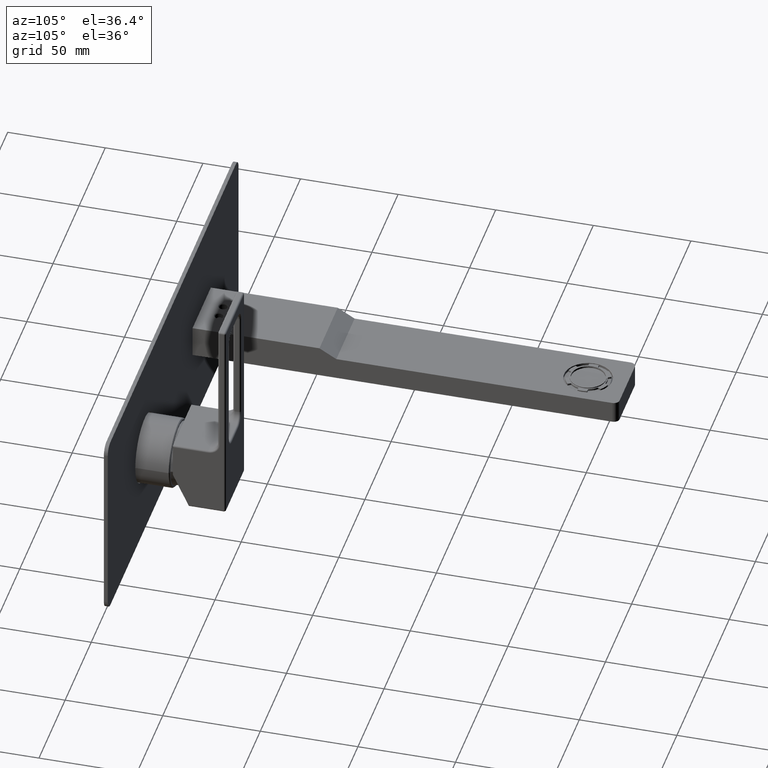
[diagram: clean part render]
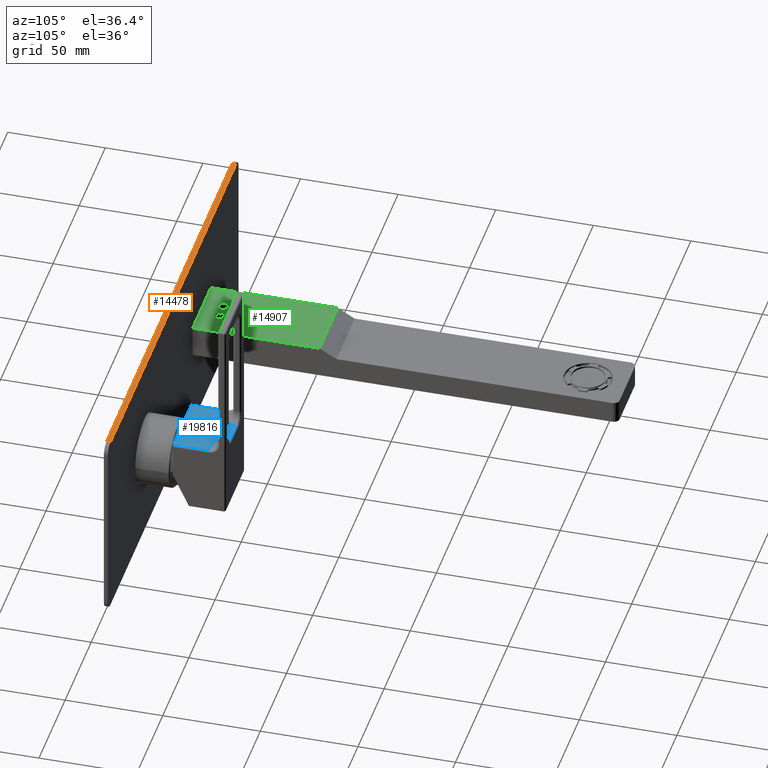
[diagram: same view with three faces highlighted in distinct colors, each labeled with its STEP entity id]
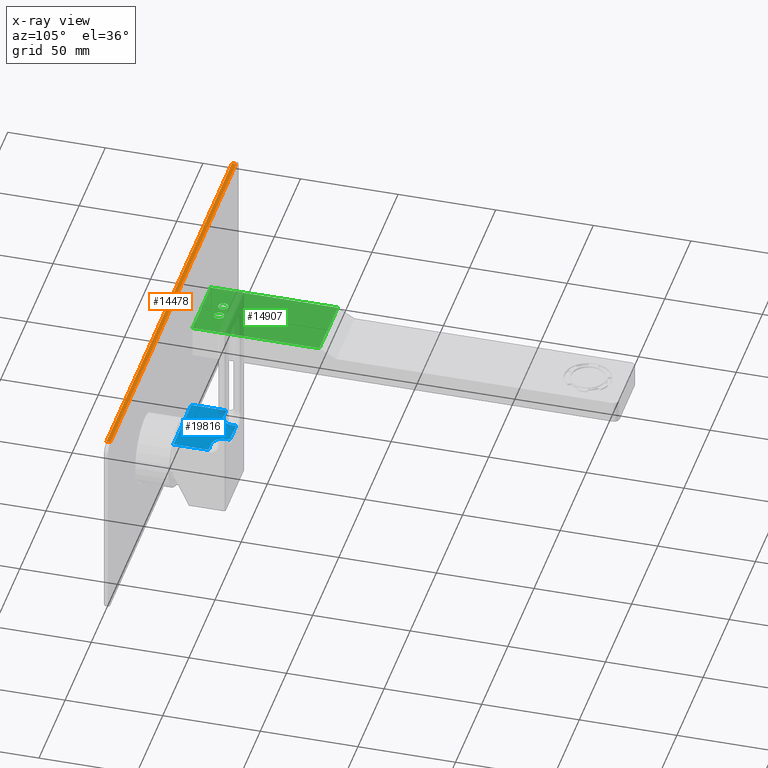
[diagram: x-ray of the same camera — body ghosted, the three highlighted faces saturated]
A machine part, auxiliary view with three faces highlighted in distinct colors.
The next image is the same camera in x-ray (body ghosted, the three faces saturated) — at least one of them is partly hidden behind the body in this view.
Their STEP definitions:

[orange] entity #14478 — the highlighted planar face has unit normal (0, 0, 1).
#12457=DIRECTION('',(1.E0,0.E0,0.E0));
#12458=VECTOR('',#12457,2.4E2);
#12459=CARTESIAN_POINT('',(-6.55E1,5.3E1,5.E1));
#12460=LINE('',#12459,#12458);
#12512=DIRECTION('',(1.E0,0.E0,0.E0));
#12513=VECTOR('',#12512,2.4E2);
#12514=CARTESIAN_POINT('',(-6.55E1,5.1E1,5.E1));
#12515=LINE('',#12514,#12513);
#12561=DIRECTION('',(0.E0,-1.E0,0.E0));
#12562=VECTOR('',#12561,2.E0);
#12563=CARTESIAN_POINT('',(-6.55E1,5.3E1,5.E1));
#12564=LINE('',#12563,#12562);
#12565=DIRECTION('',(0.E0,-1.E0,0.E0));
#12566=VECTOR('',#12565,2.E0);
#12567=CARTESIAN_POINT('',(1.745E2,5.3E1,5.E1));
#12568=LINE('',#12567,#12566);
#13972=CARTESIAN_POINT('',(-6.55E1,5.1E1,5.E1));
#13974=VERTEX_POINT('',#13972);
#13978=CARTESIAN_POINT('',(-6.55E1,5.3E1,5.E1));
#13979=VERTEX_POINT('',#13978);
#13981=CARTESIAN_POINT('',(1.745E2,5.1E1,5.E1));
#13983=VERTEX_POINT('',#13981);
#13984=CARTESIAN_POINT('',(1.745E2,5.3E1,5.E1));
#13985=VERTEX_POINT('',#13984);
#14466=CARTESIAN_POINT('',(-7.05E1,5.1E1,5.E1));
#14467=DIRECTION('',(0.E0,0.E0,1.E0));
#14468=DIRECTION('',(1.E0,0.E0,0.E0));
#14469=AXIS2_PLACEMENT_3D('',#14466,#14467,#14468);
#14470=PLANE('',#14469);
#14471=ORIENTED_EDGE('',*,*,#14454,.F.);
#14472=ORIENTED_EDGE('',*,*,#14287,.T.);
#14474=ORIENTED_EDGE('',*,*,#14473,.T.);
#14475=ORIENTED_EDGE('',*,*,#14358,.F.);
#14476=EDGE_LOOP('',(#14471,#14472,#14474,#14475));
#14477=FACE_OUTER_BOUND('',#14476,.F.);
#14478=ADVANCED_FACE('',(#14477),#14470,.T.);
#14287=EDGE_CURVE('',#13979,#13985,#12460,.T.);
#14358=EDGE_CURVE('',#13974,#13983,#12515,.T.);
#14454=EDGE_CURVE('',#13979,#13974,#12564,.T.);
#14473=EDGE_CURVE('',#13985,#13983,#12568,.T.);

[blue] entity #19816 — the highlighted planar face has unit normal (0, 0, 1).
#16762=DIRECTION('',(1.E0,0.E0,0.E0));
#16763=VECTOR('',#16762,3.4E1);
#16764=CARTESIAN_POINT('',(9.2E1,7.228403517394E1,1.771815534591E1));
#16765=LINE('',#16764,#16763);
#17511=DIRECTION('',(-1.E0,1.731280006841E-10,0.E0));
#17512=VECTOR('',#17511,5.000000004052E0);
#17513=CARTESIAN_POINT('',(1.26E2,9.028403517310E1,1.771815534591E1));
#17514=LINE('',#17513,#17512);
#17520=DIRECTION('',(-4.305107363769E-10,1.E0,-3.197442297606E-14));
#17521=VECTOR('',#17520,2.000000008328E0);
#17522=CARTESIAN_POINT('',(1.150000000001E2,9.628403516561E1,1.771815534591E1));
#17523=LINE('',#17522,#17521);
#17524=DIRECTION('',(0.E0,-1.E0,3.177705012853E-14));
#17525=VECTOR('',#17524,1.799999999916E1);
#17526=CARTESIAN_POINT('',(1.26E2,9.028403517310E1,1.771815534591E1));
#17527=LINE('',#17526,#17525);
#17528=DIRECTION('',(1.026339507304E-14,1.E0,-3.177705013E-14));
#17529=VECTOR('',#17528,1.799999999833E1);
#17530=CARTESIAN_POINT('',(9.2E1,7.228403517394E1,1.771815534591E1));
#17531=LINE('',#17530,#17529);
#17532=DIRECTION('',(-4.300062510319E-10,-1.E0,3.019806614372E-14));
#17533=VECTOR('',#17532,2.000000008351E0);
#17534=CARTESIAN_POINT('',(1.030000000008E2,9.828403517394E1,1.771815534591E1));
#17535=LINE('',#17534,#17533);
#17536=DIRECTION('',(-1.E0,0.E0,0.E0));
#17537=VECTOR('',#17536,1.199999999849E1);
#17538=CARTESIAN_POINT('',(1.149999999992E2,9.828403517394E1,1.771815534591E1));
#17539=LINE('',#17538,#17537);
#17575=CARTESIAN_POINT('',(9.7E1,9.628403517394E1,1.771815534591E1));
#17576=DIRECTION('',(0.E0,-3.186340080674E-14,-1.E0));
#17577=DIRECTION('',(1.E0,0.E0,0.E0));
#17578=AXIS2_PLACEMENT_3D('',#17575,#17576,#17577);
#17595=DIRECTION('',(-1.E0,-3.399065914875E-10,0.E0));
#17596=VECTOR('',#17595,5.000000004037E0);
#17597=CARTESIAN_POINT('',(9.700000000404E1,9.028403517396E1,1.771815534591E1));
#17598=LINE('',#17597,#17596);
#17676=CARTESIAN_POINT('',(1.21E2,9.628403517394E1,1.771815534591E1));
#17677=DIRECTION('',(0.E0,-3.186340080674E-14,-1.E0));
#17678=DIRECTION('',(0.E0,-1.E0,3.197442310920E-14));
#17679=AXIS2_PLACEMENT_3D('',#17676,#17677,#17678);
#17740=CARTESIAN_POINT('',(1.26E2,7.228403517394E1,1.771815534591E1));
#17742=VERTEX_POINT('',#17740);
#17743=CARTESIAN_POINT('',(1.26E2,9.028403517310E1,1.771815534591E1));
#17744=VERTEX_POINT('',#17743);
#17769=CARTESIAN_POINT('',(9.2E1,9.028403517394E1,1.771815534591E1));
#17770=VERTEX_POINT('',#17769);
#17771=CARTESIAN_POINT('',(9.2E1,7.228403517394E1,1.771815534591E1));
#17773=VERTEX_POINT('',#17771);
#17775=CARTESIAN_POINT('',(1.149999999992E2,9.828403517394E1,1.771815534591E1));
#17776=CARTESIAN_POINT('',(1.030000000008E2,9.828403517394E1,1.771815534591E1));
#17777=VERTEX_POINT('',#17775);
#17778=VERTEX_POINT('',#17776);
#17831=CARTESIAN_POINT('',(1.03E2,9.628403517394E1,1.771815534591E1));
#17832=VERTEX_POINT('',#17831);
#17833=CARTESIAN_POINT('',(9.7E1,9.028403517394E1,1.771815534591E1));
#17834=VERTEX_POINT('',#17833);
#17835=CARTESIAN_POINT('',(1.21E2,9.028403517394E1,1.771815534591E1));
#17836=VERTEX_POINT('',#17835);
#17837=CARTESIAN_POINT('',(1.15E2,9.628403517394E1,1.771815534591E1));
#17838=VERTEX_POINT('',#17837);
#19793=CARTESIAN_POINT('',(9.1E1,9.528403517394E1,1.771815534591E1));
#19794=DIRECTION('',(0.E0,3.186340080674E-14,1.E0));
#19795=DIRECTION('',(0.E0,-1.E0,3.186340080674E-14));
#19796=AXIS2_PLACEMENT_3D('',#19793,#19794,#19795);
#19797=PLANE('',#19796);
#19799=ORIENTED_EDGE('',*,*,#19798,.F.);
#19801=ORIENTED_EDGE('',*,*,#19800,.F.);
#19802=ORIENTED_EDGE('',*,*,#19778,.F.);
#19803=ORIENTED_EDGE('',*,*,#18499,.T.);
#19804=ORIENTED_EDGE('',*,*,#18531,.F.);
#19805=ORIENTED_EDGE('',*,*,#19687,.T.);
#19807=ORIENTED_EDGE('',*,*,#19806,.F.);
#19809=ORIENTED_EDGE('',*,*,#19808,.F.);
#19811=ORIENTED_EDGE('',*,*,#19810,.F.);
#19813=ORIENTED_EDGE('',*,*,#19812,.F.);
#19814=EDGE_LOOP('',(#19799,#19801,#19802,#19803,#19804,#19805,#19807,#19809,
#19811,#19813));
#19815=FACE_OUTER_BOUND('',#19814,.F.);
#19816=ADVANCED_FACE('',(#19815),#19797,.T.);
#17579=CIRCLE('',#17578,6.E0);
#17680=CIRCLE('',#17679,6.E0);
#18499=EDGE_CURVE('',#17744,#17742,#17527,.T.);
#18531=EDGE_CURVE('',#17773,#17742,#16765,.T.);
#19687=EDGE_CURVE('',#17773,#17770,#17531,.T.);
#19778=EDGE_CURVE('',#17744,#17836,#17514,.T.);
#19798=EDGE_CURVE('',#17838,#17777,#17523,.T.);
#19800=EDGE_CURVE('',#17836,#17838,#17680,.T.);
#19806=EDGE_CURVE('',#17834,#17770,#17598,.T.);
#19808=EDGE_CURVE('',#17832,#17834,#17579,.T.);
#19810=EDGE_CURVE('',#17778,#17832,#17535,.T.);
#19812=EDGE_CURVE('',#17777,#17778,#17539,.T.);

[green] entity #14907 — the highlighted planar face has unit normal (0, 0, -1).
#12820=DIRECTION('',(0.E0,1.E0,0.E0));
#12821=VECTOR('',#12820,6.5E1);
#12822=CARTESIAN_POINT('',(-1.75E1,5.3E1,8.25E0));
#12823=LINE('',#12822,#12821);
#12824=DIRECTION('',(1.E0,0.E0,0.E0));
#12825=VECTOR('',#12824,3.5E1);
#12826=CARTESIAN_POINT('',(-1.75E1,1.18E2,8.25E0));
#12827=LINE('',#12826,#12825);
#12828=DIRECTION('',(0.E0,-1.E0,0.E0));
#12829=VECTOR('',#12828,6.5E1);
#12830=CARTESIAN_POINT('',(1.75E1,1.18E2,8.25E0));
#12831=LINE('',#12830,#12829);
#12832=DIRECTION('',(1.E0,0.E0,0.E0));
#12833=VECTOR('',#12832,3.5E1);
#12834=CARTESIAN_POINT('',(-1.75E1,5.3E1,8.25E0));
#12835=LINE('',#12834,#12833);
#12836=CARTESIAN_POINT('',(4.E0,6.3E1,8.25E0));
#12837=DIRECTION('',(0.E0,0.E0,1.E0));
#12838=DIRECTION('',(-1.E0,0.E0,0.E0));
#12839=AXIS2_PLACEMENT_3D('',#12836,#12837,#12838);
#12841=CARTESIAN_POINT('',(4.E0,6.3E1,8.25E0));
#12842=DIRECTION('',(0.E0,0.E0,1.E0));
#12843=DIRECTION('',(1.E0,0.E0,0.E0));
#12844=AXIS2_PLACEMENT_3D('',#12841,#12842,#12843);
#12846=CARTESIAN_POINT('',(-4.E0,6.3E1,8.25E0));
#12847=DIRECTION('',(0.E0,0.E0,-1.E0));
#12848=DIRECTION('',(1.E0,0.E0,0.E0));
#12849=AXIS2_PLACEMENT_3D('',#12846,#12847,#12848);
#12851=CARTESIAN_POINT('',(-4.E0,6.3E1,8.25E0));
#12852=DIRECTION('',(0.E0,0.E0,-1.E0));
#12853=DIRECTION('',(-1.E0,0.E0,0.E0));
#12854=AXIS2_PLACEMENT_3D('',#12851,#12852,#12853);
#13707=CARTESIAN_POINT('',(1.5E0,6.3E1,8.25E0));
#13708=CARTESIAN_POINT('',(6.5E0,6.3E1,8.25E0));
#13709=VERTEX_POINT('',#13707);
#13710=VERTEX_POINT('',#13708);
#13738=CARTESIAN_POINT('',(-1.5E0,6.3E1,8.25E0));
#13739=VERTEX_POINT('',#13738);
#13740=CARTESIAN_POINT('',(-6.5E0,6.3E1,8.25E0));
#13741=VERTEX_POINT('',#13740);
#13764=CARTESIAN_POINT('',(-1.75E1,1.18E2,8.25E0));
#13765=CARTESIAN_POINT('',(1.75E1,1.18E2,8.25E0));
#13766=VERTEX_POINT('',#13764);
#13767=VERTEX_POINT('',#13765);
#13996=CARTESIAN_POINT('',(-1.75E1,5.3E1,8.25E0));
#13997=CARTESIAN_POINT('',(1.75E1,5.3E1,8.25E0));
#13998=VERTEX_POINT('',#13996);
#13999=VERTEX_POINT('',#13997);
#14883=CARTESIAN_POINT('',(0.E0,5.3E1,8.25E0));
#14884=DIRECTION('',(0.E0,0.E0,-1.E0));
#14885=DIRECTION('',(1.E0,0.E0,0.E0));
#14886=AXIS2_PLACEMENT_3D('',#14883,#14884,#14885);
#14887=PLANE('',#14886);
#14888=ORIENTED_EDGE('',*,*,#14264,.T.);
#14890=ORIENTED_EDGE('',*,*,#14889,.T.);
#14892=ORIENTED_EDGE('',*,*,#14891,.T.);
#14893=ORIENTED_EDGE('',*,*,#14305,.F.);
#14894=EDGE_LOOP('',(#14888,#14890,#14892,#14893));
#14895=FACE_OUTER_BOUND('',#14894,.F.);
#14897=ORIENTED_EDGE('',*,*,#14896,.T.);
#14898=ORIENTED_EDGE('',*,*,#14866,.T.);
#14899=EDGE_LOOP('',(#14897,#14898));
#14900=FACE_BOUND('',#14899,.F.);
#14902=ORIENTED_EDGE('',*,*,#14901,.F.);
#14904=ORIENTED_EDGE('',*,*,#14903,.F.);
#14905=EDGE_LOOP('',(#14902,#14904));
#14906=FACE_BOUND('',#14905,.F.);
#14907=ADVANCED_FACE('',(#14895,#14900,#14906),#14887,.F.);
#12840=CIRCLE('',#12839,2.5E0);
#12845=CIRCLE('',#12844,2.5E0);
#12850=CIRCLE('',#12849,2.5E0);
#12855=CIRCLE('',#12854,2.5E0);
#14264=EDGE_CURVE('',#13998,#13766,#12823,.T.);
#14305=EDGE_CURVE('',#13998,#13999,#12835,.T.);
#14866=EDGE_CURVE('',#13710,#13709,#12845,.T.);
#14889=EDGE_CURVE('',#13766,#13767,#12827,.T.);
#14891=EDGE_CURVE('',#13767,#13999,#12831,.T.);
#14896=EDGE_CURVE('',#13709,#13710,#12840,.T.);
#14901=EDGE_CURVE('',#13739,#13741,#12850,.T.);
#14903=EDGE_CURVE('',#13741,#13739,#12855,.T.);